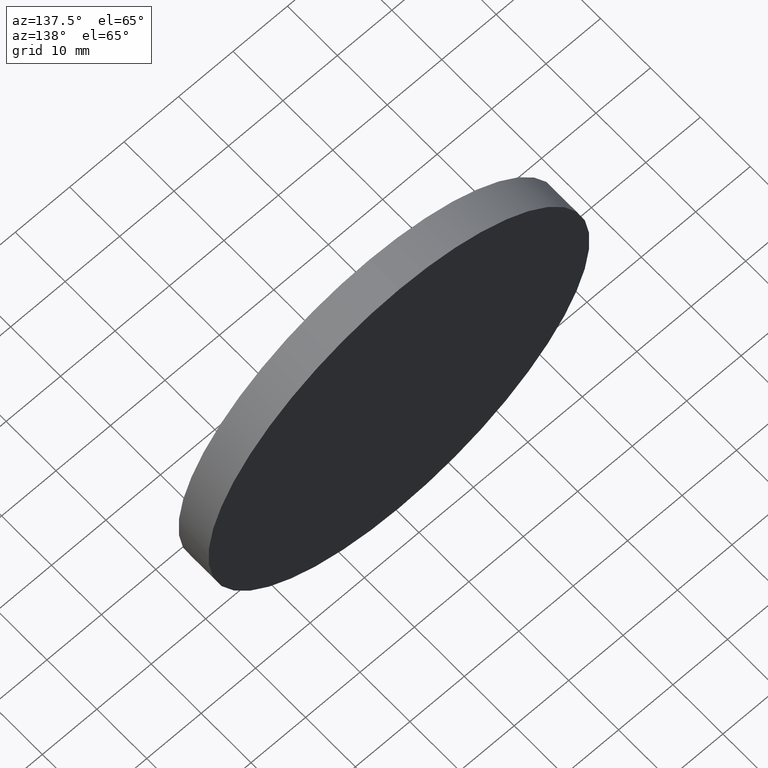
[diagram: clean part render]
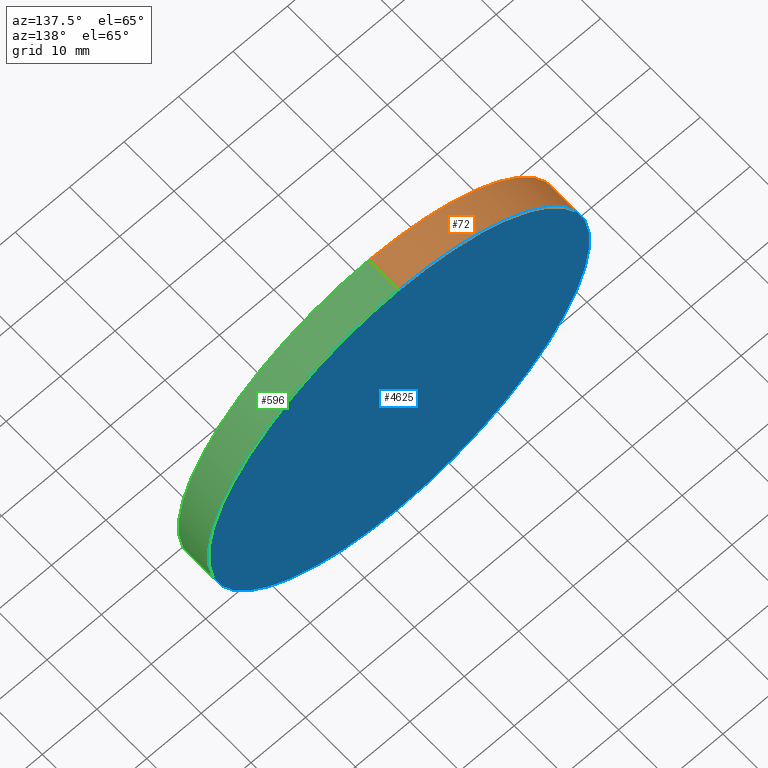
[diagram: same view with three faces highlighted in distinct colors, each labeled with its STEP entity id]
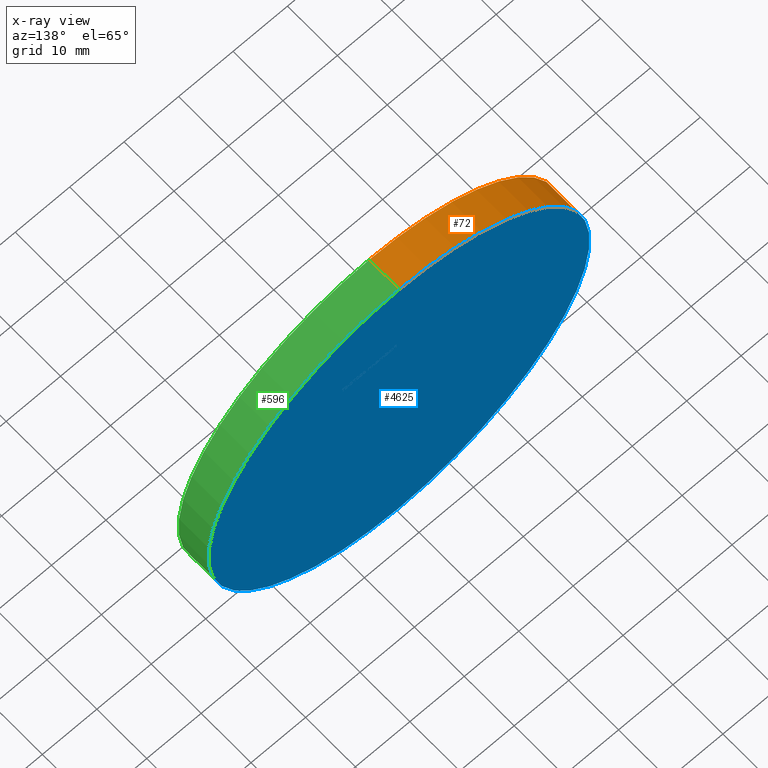
[diagram: x-ray of the same camera — body ghosted, the three highlighted faces saturated]
A machine part, auxiliary view with three faces highlighted in distinct colors.
The next image is the same camera in x-ray (body ghosted, the three faces saturated) — at least one of them is partly hidden behind the body in this view.
Their STEP definitions:

[orange] entity #72 — the highlighted cylindrical surface (partial cylindrical patch) has radius 35 mm, axis along (-0, -1, -0).
#72 = ADVANCED_FACE ( 'NONE', ( #1535 ), #8781, .T. ) ;
#116 = EDGE_CURVE ( 'NONE', #2803, #5848, #7181, .T. ) ;
#1535 = FACE_OUTER_BOUND ( 'NONE', #3012, .T. ) ;
#2005 = ORIENTED_EDGE ( 'NONE', *, *, #116, .T. ) ;
#2124 = CARTESIAN_POINT ( 'NONE',  ( 0.0000000000000000000, 0.0000000000000000000, -35.00000000000000700 ) ) ;
#2530 = CARTESIAN_POINT ( 'NONE',  ( 0.0000000000000000000, 6.000000000000000000, 0.0000000000000000000 ) ) ;
#2688 = CARTESIAN_POINT ( 'NONE',  ( 4.286263797015737300E-015, 0.0000000000000000000, 35.00000000000000700 ) ) ;
#2770 = EDGE_CURVE ( 'NONE', #9308, #2803, #5733, .T. ) ;
#2803 = VERTEX_POINT ( 'NONE', #2124 ) ;
#3012 = EDGE_LOOP ( 'NONE', ( #7397, #11401, #3866, #2005 ) ) ;
#3287 = VERTEX_POINT ( 'NONE', #5517 ) ;
#3398 = CARTESIAN_POINT ( 'NONE',  ( 0.0000000000000000000, 6.000000000000000000, -35.00000000000000700 ) ) ;
#3667 = EDGE_CURVE ( 'NONE', #9308, #3287, #8369, .T. ) ;
#3866 = ORIENTED_EDGE ( 'NONE', *, *, #2770, .T. ) ;
#4255 = EDGE_CURVE ( 'NONE', #3287, #5848, #7914, .T. ) ;
#5428 = VECTOR ( 'NONE', #9472, 1000.000000000000000 ) ;
#5517 = CARTESIAN_POINT ( 'NONE',  ( 4.286263797015737300E-015, 6.000000000000000000, 35.00000000000000700 ) ) ;
#5733 = LINE ( 'NONE', #11388, #8517 ) ;
#5848 = VERTEX_POINT ( 'NONE', #2688 ) ;
#5918 = AXIS2_PLACEMENT_3D ( 'NONE', #2530, #6055, #7950 ) ;
#6055 = DIRECTION ( 'NONE',  ( 0.0000000000000000000, 1.000000000000000000, 0.0000000000000000000 ) ) ;
#6649 = DIRECTION ( 'NONE',  ( 0.0000000000000000000, 0.0000000000000000000, 1.000000000000000000 ) ) ;
#6726 = DIRECTION ( 'NONE',  ( -0.0000000000000000000, -1.000000000000000000, -0.0000000000000000000 ) ) ;
#7181 = CIRCLE ( 'NONE', #10318, 35.00000000000000700 ) ;
#7397 = ORIENTED_EDGE ( 'NONE', *, *, #4255, .F. ) ;
#7914 = LINE ( 'NONE', #10426, #5428 ) ;
#7950 = DIRECTION ( 'NONE',  ( 0.0000000000000000000, 0.0000000000000000000, 1.000000000000000000 ) ) ;
#8369 = CIRCLE ( 'NONE', #5918, 35.00000000000000700 ) ;
#8412 = CARTESIAN_POINT ( 'NONE',  ( 0.0000000000000000000, 0.0000000000000000000, 0.0000000000000000000 ) ) ;
#8517 = VECTOR ( 'NONE', #6726, 1000.000000000000000 ) ;
#8781 = CYLINDRICAL_SURFACE ( 'NONE', #11951, 35.00000000000000700 ) ;
#9308 = VERTEX_POINT ( 'NONE', #3398 ) ;
#9389 = DIRECTION ( 'NONE',  ( 0.0000000000000000000, 1.000000000000000000, 0.0000000000000000000 ) ) ;
#9462 = DIRECTION ( 'NONE',  ( 0.0000000000000000000, 0.0000000000000000000, -1.000000000000000000 ) ) ;
#9472 = DIRECTION ( 'NONE',  ( -0.0000000000000000000, -1.000000000000000000, -0.0000000000000000000 ) ) ;
#9934 = CARTESIAN_POINT ( 'NONE',  ( 0.0000000000000000000, 6.000000000000000000, 0.0000000000000000000 ) ) ;
#10318 = AXIS2_PLACEMENT_3D ( 'NONE', #8412, #9389, #6649 ) ;
#10426 = CARTESIAN_POINT ( 'NONE',  ( 4.286263797015737300E-015, 6.000000000000000000, 35.00000000000000700 ) ) ;
#11388 = CARTESIAN_POINT ( 'NONE',  ( 0.0000000000000000000, 6.000000000000000000, -35.00000000000000700 ) ) ;
#11401 = ORIENTED_EDGE ( 'NONE', *, *, #3667, .F. ) ;
#11813 = DIRECTION ( 'NONE',  ( -0.0000000000000000000, -1.000000000000000000, -0.0000000000000000000 ) ) ;
#11951 = AXIS2_PLACEMENT_3D ( 'NONE', #9934, #11813, #9462 ) ;

[blue] entity #4625 — the highlighted planar face has unit normal (0, 1, 0).
#775 = DIRECTION ( 'NONE',  ( 0.0000000000000000000, 1.000000000000000000, 0.0000000000000000000 ) ) ;
#954 = FACE_OUTER_BOUND ( 'NONE', #9837, .T. ) ;
#1451 = DIRECTION ( 'NONE',  ( 0.0000000000000000000, 1.000000000000000000, 0.0000000000000000000 ) ) ;
#2530 = CARTESIAN_POINT ( 'NONE',  ( 0.0000000000000000000, 6.000000000000000000, 0.0000000000000000000 ) ) ;
#3287 = VERTEX_POINT ( 'NONE', #5517 ) ;
#3398 = CARTESIAN_POINT ( 'NONE',  ( 0.0000000000000000000, 6.000000000000000000, -35.00000000000000700 ) ) ;
#3667 = EDGE_CURVE ( 'NONE', #9308, #3287, #8369, .T. ) ;
#3885 = ORIENTED_EDGE ( 'NONE', *, *, #3667, .T. ) ;
#4265 = CIRCLE ( 'NONE', #7185, 35.00000000000000700 ) ;
#4301 = DIRECTION ( 'NONE',  ( 0.0000000000000000000, 0.0000000000000000000, 1.000000000000000000 ) ) ;
#4625 = ADVANCED_FACE ( 'NONE', ( #954 ), #9008, .T. ) ;
#5178 = EDGE_CURVE ( 'NONE', #3287, #9308, #4265, .T. ) ;
#5343 = DIRECTION ( 'NONE',  ( 0.0000000000000000000, -0.0000000000000000000, 1.000000000000000000 ) ) ;
#5517 = CARTESIAN_POINT ( 'NONE',  ( 4.286263797015737300E-015, 6.000000000000000000, 35.00000000000000700 ) ) ;
#5918 = AXIS2_PLACEMENT_3D ( 'NONE', #2530, #6055, #7950 ) ;
#6055 = DIRECTION ( 'NONE',  ( 0.0000000000000000000, 1.000000000000000000, 0.0000000000000000000 ) ) ;
#6243 = CARTESIAN_POINT ( 'NONE',  ( 0.0000000000000000000, 6.000000000000000000, 0.0000000000000000000 ) ) ;
#7001 = CARTESIAN_POINT ( 'NONE',  ( 0.0000000000000000000, 6.000000000000000000, 0.0000000000000000000 ) ) ;
#7185 = AXIS2_PLACEMENT_3D ( 'NONE', #7001, #1451, #4301 ) ;
#7950 = DIRECTION ( 'NONE',  ( 0.0000000000000000000, 0.0000000000000000000, 1.000000000000000000 ) ) ;
#8369 = CIRCLE ( 'NONE', #5918, 35.00000000000000700 ) ;
#9008 = PLANE ( 'NONE',  #9918 ) ;
#9308 = VERTEX_POINT ( 'NONE', #3398 ) ;
#9837 = EDGE_LOOP ( 'NONE', ( #3885, #10617 ) ) ;
#9918 = AXIS2_PLACEMENT_3D ( 'NONE', #6243, #775, #5343 ) ;
#10617 = ORIENTED_EDGE ( 'NONE', *, *, #5178, .T. ) ;

[green] entity #596 — the highlighted cylindrical surface (partial cylindrical patch) has radius 35 mm, axis along (-0, -1, -0).
#596 = ADVANCED_FACE ( 'NONE', ( #808 ), #3858, .T. ) ;
#808 = FACE_OUTER_BOUND ( 'NONE', #11183, .T. ) ;
#968 = ORIENTED_EDGE ( 'NONE', *, *, #2770, .F. ) ;
#1311 = DIRECTION ( 'NONE',  ( 0.0000000000000000000, 0.0000000000000000000, -1.000000000000000000 ) ) ;
#1396 = DIRECTION ( 'NONE',  ( -0.0000000000000000000, -1.000000000000000000, -0.0000000000000000000 ) ) ;
#1451 = DIRECTION ( 'NONE',  ( 0.0000000000000000000, 1.000000000000000000, 0.0000000000000000000 ) ) ;
#2124 = CARTESIAN_POINT ( 'NONE',  ( 0.0000000000000000000, 0.0000000000000000000, -35.00000000000000700 ) ) ;
#2365 = EDGE_CURVE ( 'NONE', #5848, #2803, #9885, .T. ) ;
#2688 = CARTESIAN_POINT ( 'NONE',  ( 4.286263797015737300E-015, 0.0000000000000000000, 35.00000000000000700 ) ) ;
#2770 = EDGE_CURVE ( 'NONE', #9308, #2803, #5733, .T. ) ;
#2803 = VERTEX_POINT ( 'NONE', #2124 ) ;
#3287 = VERTEX_POINT ( 'NONE', #5517 ) ;
#3398 = CARTESIAN_POINT ( 'NONE',  ( 0.0000000000000000000, 6.000000000000000000, -35.00000000000000700 ) ) ;
#3858 = CYLINDRICAL_SURFACE ( 'NONE', #6412, 35.00000000000000700 ) ;
#4255 = EDGE_CURVE ( 'NONE', #3287, #5848, #7914, .T. ) ;
#4265 = CIRCLE ( 'NONE', #7185, 35.00000000000000700 ) ;
#4301 = DIRECTION ( 'NONE',  ( 0.0000000000000000000, 0.0000000000000000000, 1.000000000000000000 ) ) ;
#5155 = AXIS2_PLACEMENT_3D ( 'NONE', #5632, #8294, #8458 ) ;
#5178 = EDGE_CURVE ( 'NONE', #3287, #9308, #4265, .T. ) ;
#5428 = VECTOR ( 'NONE', #9472, 1000.000000000000000 ) ;
#5517 = CARTESIAN_POINT ( 'NONE',  ( 4.286263797015737300E-015, 6.000000000000000000, 35.00000000000000700 ) ) ;
#5632 = CARTESIAN_POINT ( 'NONE',  ( 0.0000000000000000000, 0.0000000000000000000, 0.0000000000000000000 ) ) ;
#5733 = LINE ( 'NONE', #11388, #8517 ) ;
#5801 = CARTESIAN_POINT ( 'NONE',  ( 0.0000000000000000000, 6.000000000000000000, 0.0000000000000000000 ) ) ;
#5848 = VERTEX_POINT ( 'NONE', #2688 ) ;
#6412 = AXIS2_PLACEMENT_3D ( 'NONE', #5801, #1396, #1311 ) ;
#6726 = DIRECTION ( 'NONE',  ( -0.0000000000000000000, -1.000000000000000000, -0.0000000000000000000 ) ) ;
#6861 = ORIENTED_EDGE ( 'NONE', *, *, #2365, .T. ) ;
#7001 = CARTESIAN_POINT ( 'NONE',  ( 0.0000000000000000000, 6.000000000000000000, 0.0000000000000000000 ) ) ;
#7185 = AXIS2_PLACEMENT_3D ( 'NONE', #7001, #1451, #4301 ) ;
#7914 = LINE ( 'NONE', #10426, #5428 ) ;
#8224 = ORIENTED_EDGE ( 'NONE', *, *, #4255, .T. ) ;
#8294 = DIRECTION ( 'NONE',  ( 0.0000000000000000000, 1.000000000000000000, 0.0000000000000000000 ) ) ;
#8458 = DIRECTION ( 'NONE',  ( 0.0000000000000000000, 0.0000000000000000000, 1.000000000000000000 ) ) ;
#8517 = VECTOR ( 'NONE', #6726, 1000.000000000000000 ) ;
#8884 = ORIENTED_EDGE ( 'NONE', *, *, #5178, .F. ) ;
#9308 = VERTEX_POINT ( 'NONE', #3398 ) ;
#9472 = DIRECTION ( 'NONE',  ( -0.0000000000000000000, -1.000000000000000000, -0.0000000000000000000 ) ) ;
#9885 = CIRCLE ( 'NONE', #5155, 35.00000000000000700 ) ;
#10426 = CARTESIAN_POINT ( 'NONE',  ( 4.286263797015737300E-015, 6.000000000000000000, 35.00000000000000700 ) ) ;
#11183 = EDGE_LOOP ( 'NONE', ( #8884, #8224, #6861, #968 ) ) ;
#11388 = CARTESIAN_POINT ( 'NONE',  ( 0.0000000000000000000, 6.000000000000000000, -35.00000000000000700 ) ) ;